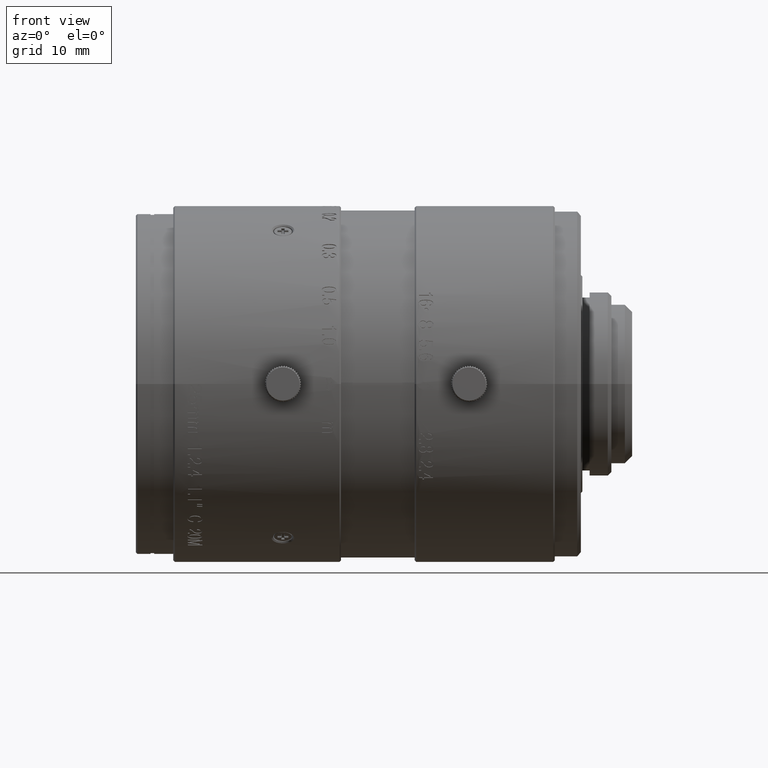
[diagram: clean part render]
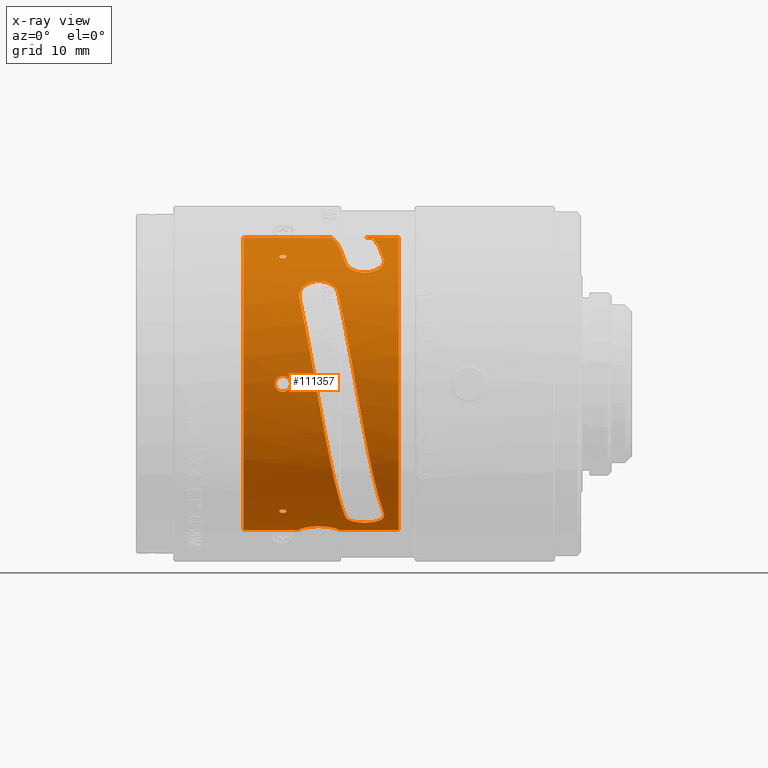
[diagram: x-ray — body ghosted, one internal face saturated and labeled with its STEP entity id]
A machine part, front view, then the same camera in x-ray: the body is ghosted and one INTERNAL B-rep face — a face not visible from any outside direction — is saturated and labeled: STEP entity #111357.
In plain terms, the highlighted cylindrical surface (partial cylindrical patch) has radius 20.25 mm, axis along (1, 0, 0).
Its self-contained STEP definition (entity closure, byte-faithful):
#106 = CARTESIAN_POINT ( 'NONE',  ( -48.52879999999999683, -10.12481306513000057, 17.53712235220000082 ) ) ;
#200 = CARTESIAN_POINT ( 'NONE',  ( -40.38462220869999442, 0.08342085603240000091, 0.6403610908152999048 ) ) ;
#450 = CARTESIAN_POINT ( 'NONE',  ( -34.11227357040999664, -9.513638902979998591, -17.87617886510999909 ) ) ;
#495 = EDGE_CURVE ( 'NONE', #81730, #96506, #132108, .T. ) ;
#799 = CARTESIAN_POINT ( 'NONE',  ( -47.52880000000001814, -10.09613309269767178, 17.55368033439397735 ) ) ;
#1018 = CARTESIAN_POINT ( 'NONE',  ( -47.54101926678306711, -10.01357050040523866, -17.60097728622428548 ) ) ;
#1874 = VERTEX_POINT ( 'NONE', #42563 ) ;
#2384 = B_SPLINE_CURVE_WITH_KNOTS ( 'NONE', 3,
 ( #130085, #24219, #34055, #109741, #66263, #76824, #13726, #56427, #74726, #117482, #64190, #14566, #25087, #26457, #68506, #15939, #112663, #102137, #49521, #4051, #111283, #79736, #36975, #89552, #78342, #48839, #58658, #101448, #59344, #100736, #81125 ),
 .UNSPECIFIED., .F., .F.,
 ( 4, 2, 1, 2, 2, 2, 2, 2, 2, 2, 2, 2, 2, 2, 2, 4 ),
 ( 0.000000000000000000, 0.06250000000000215106, 0.09375000000000313638, 0.1093750000000031086, 0.1250000000000030809, 0.2500000000000027756, 0.3750000000000024425, 0.5000000000000021094, 0.6250000000000018874, 0.7500000000000015543, 0.8125000000000004441, 0.8437500000000004441, 0.8750000000000003331, 0.9062500000000003331, 0.9375000000000003331, 1.000000000000000000 ),
 .UNSPECIFIED. ) ;
#2459 = B_SPLINE_CURVE_WITH_KNOTS ( 'NONE', 3,
 ( #7207, #84284, #92012, #18373, #72342, #49912, #29589, #115120, #92694, #135488, #39428, #28888, #70283, #136877, #61812, #105293, #134800, #71640, #114420, #8591, #40105, #61111, #126337, #17026, #103902, #82880, #73043, #7894, #51286, #62494, #94059, #113051, #9286, #93379, #59739, #52002, #94766, #102509, #137580, #6513, #38738, #81511, #124255, #70966, #110649, #21168, #25135, #88240, #131687, #119770, #117194, #121146, #31684, #9985, #65788, #131013, #67860, #67165, #77038, #98726, #14615, #87544, #74434, #57337, #46148, #44757, #130309, #99428, #77716, #108573 ),
 .UNSPECIFIED., .F., .F.,
 ( 4, 2, 2, 1, 1, 1, 2, 2, 2, 2, 2, 1, 2, 2, 2, 2, 2, 1, 1, 2, 2, 2, 2, 1, 1, 2, 2, 2, 2, 2, 2, 2, 2, 2, 2, 1, 1, 2, 2, 4 ),
 ( 0.000000000000000000, 0.06250000000018672563, 0.09375000000028012315, 0.1093750000003268358, 0.1171875000003528428, 0.1210937500003658740, 0.1230468750003697737, 0.1250000000003736733, 0.1875000000003680389, 0.2187500000003652356, 0.2343750000003638478, 0.2421875000003647915, 0.2460937500003652356, 0.2500000000003656520, 0.3750000000003474443, 0.4375000000003383405, 0.4687500000003343437, 0.4843750000003326783, 0.4921875000003318457, 0.4960937500003313461, 0.5000000000003308465, 0.5625000000003227418, 0.5937500000003187450, 0.6093750000003166356, 0.6171875000003156364, 0.6210937500003161915, 0.6250000000003167466, 0.6875000000002928768, 0.7187500000002825518, 0.7343750000002773337, 0.7421875000002746692, 0.7500000000002720046, 0.8125000000002544631, 0.8437500000002482459, 0.8593750000002486900, 0.8671875000002530198, 0.8710937500002551293, 0.8730468750002513545, 0.8750000000002474687, 1.000000000000000000 ),
 .UNSPECIFIED. ) ;
#2532 = CARTESIAN_POINT ( 'NONE',  ( -38.31895458895667161, -20.23575897031674842, 1.656850339809547989 ) ) ;
#3223 = CARTESIAN_POINT ( 'NONE',  ( -40.42229509822999489, -15.95265611257999971, 12.47312797768999815 ) ) ;
#3526 = CARTESIAN_POINT ( 'NONE',  ( -49.12859646563034488, -20.24999408300200798, -0.02222308514574727889 ) ) ;
#3598 = CARTESIAN_POINT ( 'NONE',  ( -35.20569407454561883, -12.83954831479481129, 15.65941260288275494 ) ) ;
#4051 = CARTESIAN_POINT ( 'NONE',  ( -45.29551758861071420, -3.940907025611291470, -19.86333095135055871 ) ) ;
#4204 = CARTESIAN_POINT ( 'NONE',  ( -48.44615943721323248, -20.22560750562838550, -0.9911048813598332119 ) ) ;
#4277 = CARTESIAN_POINT ( 'NONE',  ( -38.22463719554377093, -12.90552227411900077, 15.60516680794106925 ) ) ;
#4293 = CARTESIAN_POINT ( 'NONE',  ( -42.03693073117205614, -14.61046084855324700, 14.02135160089777521 ) ) ;
#4903 = CARTESIAN_POINT ( 'NONE',  ( -48.16394627989118504, -20.22197463871665946, -1.065627678849559556 ) ) ;
#4980 = CARTESIAN_POINT ( 'NONE',  ( -39.44531220995999377, -11.42874829716000029, 16.71674284359999874 ) ) ;
#4999 = CARTESIAN_POINT ( 'NONE',  ( -45.67748844455144308, -15.73827126693542411, 12.74269580876912933 ) ) ;
#5596 = CARTESIAN_POINT ( 'NONE',  ( -49.02008021686829409, -20.24424511522042991, -0.4839587143050562701 ) ) ;
#5671 = CARTESIAN_POINT ( 'NONE',  ( -34.19011864835589165, -11.71149211939590451, 16.52000094575416256 ) ) ;
#5684 = CARTESIAN_POINT ( 'NONE',  ( -45.75527937475999352, -16.45709711632999728, 11.79959671619000083 ) ) ;
#5720 = VERTEX_POINT ( 'NONE', #116036 ) ;
#5864 = CARTESIAN_POINT ( 'NONE',  ( -36.56128229610000346, 2.408561789100999828, 20.10626992398999846 ) ) ;
#6037 = CARTESIAN_POINT ( 'NONE',  ( -33.57296076539333995, 2.408558432899318369, 20.10625142276238364 ) ) ;
#6287 = CARTESIAN_POINT ( 'NONE',  ( -49.12878510527670528, -20.25000178914660509, -0.006580600342135608724 ) ) ;
#6369 = CARTESIAN_POINT ( 'NONE',  ( -45.74069896378925648, -15.89764976932189811, 12.54329873863159150 ) ) ;
#6464 = CARTESIAN_POINT ( 'NONE',  ( -41.28560647210291279, -16.59089884267124759, -11.70355315028630017 ) ) ;
#6513 = CARTESIAN_POINT ( 'NONE',  ( -46.97997489469916843, -20.24742282697279094, -0.3232098842096847169 ) ) ;
#6630 = CARTESIAN_POINT ( 'NONE',  ( -37.59114454472811673, -2.408556998398193372, -20.10625159460218470 ) ) ;
#6978 = CARTESIAN_POINT ( 'NONE',  ( -48.66190521122507562, -20.23100229275926054, 0.8793843561459475655 ) ) ;
#7207 = CARTESIAN_POINT ( 'NONE',  ( -48.02880000001000127, -20.22161338612999870, 1.071845166923000026 ) ) ;
#7671 = CARTESIAN_POINT ( 'NONE',  ( -49.07762510563425451, -20.24741578580853840, 0.3236506760552796957 ) ) ;
#7825 = CARTESIAN_POINT ( 'NONE',  ( -48.16111120843411442, -10.55466297422008104, 17.28182830352623611 ) ) ;
#7894 = CARTESIAN_POINT ( 'NONE',  ( -46.93711135528146627, -20.24946178372794492, 0.1341161370444330370 ) ) ;
#8591 = CARTESIAN_POINT ( 'NONE',  ( -47.28193485154618259, -20.23479296349415080, 0.7871666455748166369 ) ) ;
#8777 = CARTESIAN_POINT ( 'NONE',  ( -47.52880000000003236, -10.06795309900939195, -17.56995131163873225 ) ) ;
#9137 = FACE_BOUND ( 'NONE', #81026, .T. ) ;
#9254 = CARTESIAN_POINT ( 'NONE',  ( -48.52879999999999683, -10.06766381085593487, 17.57011667731403293 ) ) ;
#9286 = CARTESIAN_POINT ( 'NONE',  ( -46.92887284243077062, -20.24999981602157462, 0.01325375563452383526 ) ) ;
#9544 = EDGE_CURVE ( 'NONE', #51928, #29408, #90101, .T. ) ;
#9748 = CARTESIAN_POINT ( 'NONE',  ( -48.50333137647957926, -20.22681306871838558, 0.9669471533844022915 ) ) ;
#9940 = CARTESIAN_POINT ( 'NONE',  ( -49.66729927620999518, 2.408556164951773493, 20.10625169444313443 ) ) ;
#9985 = CARTESIAN_POINT ( 'NONE',  ( -47.23086791926326811, -20.23658485823773034, -0.7374022066507990303 ) ) ;
#10261 = AXIS2_PLACEMENT_3D ( 'NONE', #100328, #133308, #134694 ) ;
#10628 = CARTESIAN_POINT ( 'NONE',  ( -47.52880000000000393, -10.12481306340999865, 17.53712235320000090 ) ) ;
#10677 = CARTESIAN_POINT ( 'NONE',  ( -39.37332581443165225, -8.455472336295287050, -18.40091126147136791 ) ) ;
#11275 = CARTESIAN_POINT ( 'NONE',  ( -45.75527937475999352, -16.45709711632999728, 11.79959671619000083 ) ) ;
#11308 = CARTESIAN_POINT ( 'NONE',  ( -47.59137329945364314, -9.907235814227075110, 17.66105981549277004 ) ) ;
#11537 = CARTESIAN_POINT ( 'NONE',  ( -47.65037198996841283, -9.839588589545856578, -17.69874440464825582 ) ) ;
#13245 = AXIS2_PLACEMENT_3D ( 'NONE', #59378, #38385, #19414 ) ;
#13280 = EDGE_CURVE ( 'NONE', #17360, #81730, #107653, .T. ) ;
#13726 = CARTESIAN_POINT ( 'NONE',  ( -40.70724417556665031, -3.655179210653486166, -19.91741673798383161 ) ) ;
#14039 = CARTESIAN_POINT ( 'NONE',  ( -48.41898148833808335, -20.22511879534888379, -1.001667809417593702 ) ) ;
#14322 = B_SPLINE_CURVE_WITH_KNOTS ( 'NONE', 3,
 ( #55616, #56313, #101865, #124286, #26182, #5864 ),
 .UNSPECIFIED., .F., .F.,
 ( 4, 2, 4 ),
 ( 0.000000000000000000, 0.5000000000000000000, 1.000000000000000000 ),
 .UNSPECIFIED. ) ;
#14514 = VERTEX_POINT ( 'NONE', #85407 ) ;
#14566 = CARTESIAN_POINT ( 'NONE',  ( -41.97684719103951068, -4.832864094903642993, -19.66508870744593551 ) ) ;
#14615 = CARTESIAN_POINT ( 'NONE',  ( -47.56595091913910522, -20.22656670701172743, -0.9718309356850606262 ) ) ;
#14787 = CARTESIAN_POINT ( 'NONE',  ( -34.16569708233484448, -11.64073041063370972, 16.56994285567734693 ) ) ;
#15468 = CARTESIAN_POINT ( 'NONE',  ( -37.06146942547332657, -13.22659217534764053, 15.33383831724744972 ) ) ;
#15483 = CARTESIAN_POINT ( 'NONE',  ( -41.20553603639986306, -14.96569853265790684, 13.64314154152526015 ) ) ;
#15939 = CARTESIAN_POINT ( 'NONE',  ( -43.96620745031694355, -4.922148953711818820, -19.64324474144696353 ) ) ;
#16035 = EDGE_CURVE ( 'NONE', #35996, #14514, #95618, .T. ) ;
#16082 = CIRCLE ( 'NONE', #98813, 20.25000000000000000 ) ;
#16175 = CARTESIAN_POINT ( 'NONE',  ( -34.80462617654630719, -12.56765122171981730, 15.87864502837565261 ) ) ;
#16193 = CARTESIAN_POINT ( 'NONE',  ( -45.78623785648446898, -16.13441371171765226, 12.23703299580258452 ) ) ;
#16239 = CARTESIAN_POINT ( 'NONE',  ( -41.17796928907333864, -2.461361287171767831, 20.24576912174977394 ) ) ;
#16274 = CARTESIAN_POINT ( 'NONE',  ( -47.52880000000001814, -10.18206377639483229, 17.50406945232782974 ) ) ;
#16792 = CARTESIAN_POINT ( 'NONE',  ( -49.12797401190474034, -20.24995566506722611, -0.04460899824779370609 ) ) ;
#16862 = CARTESIAN_POINT ( 'NONE',  ( -34.10408200689883529, -11.39728317899552223, 16.73849722605891444 ) ) ;
#16878 = CARTESIAN_POINT ( 'NONE',  ( -42.28689372964253579, -14.54737747475750353, 14.08677206357931411 ) ) ;
#17026 = CARTESIAN_POINT ( 'NONE',  ( -47.11897856533737894, -20.24071224605111396, 0.6284067250533139637 ) ) ;
#17360 = VERTEX_POINT ( 'NONE', #34140 ) ;
#17468 = CARTESIAN_POINT ( 'NONE',  ( -48.94720715300677938, -20.24133564406927022, 0.5908138467872915411 ) ) ;
#17641 = CARTESIAN_POINT ( 'NONE',  ( -43.65190389115667102, -20.28712087440346679, 0.8147437491022800904 ) ) ;
#17709 = VERTEX_POINT ( 'NONE', #22053 ) ;
#18150 = CARTESIAN_POINT ( 'NONE',  ( -49.10172425199392876, -20.24859024254937268, 0.2388753425395543362 ) ) ;
#18373 = CARTESIAN_POINT ( 'NONE',  ( -47.78739459818954316, -20.22296560755661332, 1.046308504388016036 ) ) ;
#18600 = EDGE_LOOP ( 'NONE', ( #50272, #113257 ) ) ;
#18846 = CARTESIAN_POINT ( 'NONE',  ( -48.47542071615910686, -20.22619219808594337, 0.9793919620728367414 ) ) ;
#19235 = CARTESIAN_POINT ( 'NONE',  ( -47.62735667124938033, -10.38811481450797025, -17.38251424646502841 ) ) ;
#19269 = CARTESIAN_POINT ( 'NONE',  ( -48.43023024045670155, -9.860041590373393561, -17.68740542236672297 ) ) ;
#19414 = DIRECTION ( 'NONE',  ( 6.167905692361979378E-14, 0.1189410589988043748, 0.9929013165890370196 ) ) ;
#19739 = CARTESIAN_POINT ( 'NONE',  ( -47.53187100814395194, -10.06816229287396602, 17.56973514510815804 ) ) ;
#19787 = CARTESIAN_POINT ( 'NONE',  ( -36.70526527444079790, -6.652845428979746067, -19.12603975744701401 ) ) ;
#19917 = CARTESIAN_POINT ( 'NONE',  ( -48.16144543591636307, -10.55523403034867336, -17.28147952509463536 ) ) ;
#19950 = CARTESIAN_POINT ( 'NONE',  ( -48.52879999999999683, -10.12519365148000006, -17.53690262046999848 ) ) ;
#20230 = CARTESIAN_POINT ( 'NONE',  ( -48.88654454837198671, -20.23885032287070729, 0.6712765846804478187 ) ) ;
#20434 = CARTESIAN_POINT ( 'NONE',  ( -47.89682477399912131, -9.688738036769171558, 17.78175624778002017 ) ) ;
#21168 = CARTESIAN_POINT ( 'NONE',  ( -47.02875397816882241, -20.24508653397005276, -0.4482907218399971860 ) ) ;
#21184 = CARTESIAN_POINT ( 'NONE',  ( -38.66117236121765899, -7.358216623281276902, -18.86700651078998447 ) ) ;
#21352 = CARTESIAN_POINT ( 'NONE',  ( -47.89621298622822110, -9.689011704638490485, -17.78160713210816724 ) ) ;
#22053 = CARTESIAN_POINT ( 'NONE',  ( -32.07879999996000464, -20.25000000000000000, 2.854047664868999741E-09 ) ) ;
#23549 = CARTESIAN_POINT ( 'NONE',  ( -35.16394382504665117, -14.27657450455600951, -14.43643011859547620 ) ) ;
#24219 = CARTESIAN_POINT ( 'NONE',  ( -40.44785009815762322, -2.984859677687928148, -20.02945153606958328 ) ) ;
#24575 = CARTESIAN_POINT ( 'NONE',  ( -48.52879999999999683, -10.12519365148000006, -17.53690262046999848 ) ) ;
#24817 = ORIENTED_EDGE ( 'NONE', *, *, #52888, .F. ) ;
#25087 = CARTESIAN_POINT ( 'NONE',  ( -42.62817918406578599, -5.024794159860141995, -19.61692465404717112 ) ) ;
#25135 = CARTESIAN_POINT ( 'NONE',  ( -47.05391173984476438, -20.24383713642227889, -0.5008187124546721325 ) ) ;
#25237 = CARTESIAN_POINT ( 'NONE',  ( -48.30605593941822207, -20.22341077174371193, -1.037433728076530670 ) ) ;
#25309 = CARTESIAN_POINT ( 'NONE',  ( -39.28796384407036868, -11.89527774999139531, 16.38815469463689567 ) ) ;
#25424 = CARTESIAN_POINT ( 'NONE',  ( -45.75527937475999352, -16.45709711632999728, 11.79959671619000083 ) ) ;
#25924 = CARTESIAN_POINT ( 'NONE',  ( -48.93862143429164036, -20.24072592185130048, -0.6279660787796434995 ) ) ;
#26010 = CARTESIAN_POINT ( 'NONE',  ( -43.16632316362417754, -14.44813116314962542, 14.18862943417085276 ) ) ;
#26182 = CARTESIAN_POINT ( 'NONE',  ( -36.15311976091167878, 0.1387281855916756013, 20.37815777540595974 ) ) ;
#26457 = CARTESIAN_POINT ( 'NONE',  ( -42.95978117167332755, -5.059845942317014789, -19.60768141054251856 ) ) ;
#26511 = CARTESIAN_POINT ( 'NONE',  ( -50.91550633908666867, -2.408556931694197711, -20.10625160259275290 ) ) ;
#26684 = CARTESIAN_POINT ( 'NONE',  ( -35.99758735675513321, -13.15104309646870462, 15.39856371130338175 ) ) ;
#26699 = CARTESIAN_POINT ( 'NONE',  ( -45.06299399529329719, -15.04353981826403164, 13.55614750852793193 ) ) ;
#26826 = CARTESIAN_POINT ( 'NONE',  ( -48.52879999999999683, -10.12481306513000057, 17.53712235220000082 ) ) ;
#27381 = DIRECTION ( 'NONE',  ( 1.000000000000000000, 1.488300509307520025E-22, -1.262101534394000094E-11 ) ) ;
#27387 = CARTESIAN_POINT ( 'NONE',  ( -34.38886786580330579, -12.10984867572913082, 16.23084377829268377 ) ) ;
#27404 = CARTESIAN_POINT ( 'NONE',  ( -45.77695131877773349, -16.05505867906326856, 12.34096635690462662 ) ) ;
#27449 = CARTESIAN_POINT ( 'NONE',  ( -39.87847647973833176, -9.425749929388967274, 18.08603618778529309 ) ) ;
#27990 = CARTESIAN_POINT ( 'NONE',  ( -48.49164908127600881, -20.22654554516852343, 0.9722712739429738571 ) ) ;
#28064 = CARTESIAN_POINT ( 'NONE',  ( -34.07483861297376393, -11.00531321802890083, 16.99923834844240389 ) ) ;
#28090 = VERTEX_POINT ( 'NONE', #131131 ) ;
#28663 = CARTESIAN_POINT ( 'NONE',  ( -48.85036812570821496, -20.23745398461192480, 0.7127674120378525435 ) ) ;
#28748 = CARTESIAN_POINT ( 'NONE',  ( -44.27879999999999683, -5.023537141824000403E-12, -2.339239912884999853E-13 ) ) ;
#28888 = CARTESIAN_POINT ( 'NONE',  ( -47.60793821945878790, -20.22565095506373822, 0.9901316442519837446 ) ) ;
#28906 = CARTESIAN_POINT ( 'NONE',  ( -35.20510295600389838, -7.142175288305477210, -18.94889715922858997 ) ) ;
#29051 = CARTESIAN_POINT ( 'NONE',  ( -48.52880000032753571, -10.18244441235558639, -17.50384803534976186 ) ) ;
#29358 = CARTESIAN_POINT ( 'NONE',  ( -49.02884602205520537, -20.24507676975548875, 0.4487314632300540840 ) ) ;
#29408 = VERTEX_POINT ( 'NONE', #36062 ) ;
#29520 = CARTESIAN_POINT ( 'NONE',  ( -47.54102213465055371, -10.23613492443792872, 17.47247947544880731 ) ) ;
#29589 = CARTESIAN_POINT ( 'NONE',  ( -47.67032198185206937, -20.22456083490534340, 1.013552559921416574 ) ) ;
#30151 = FACE_BOUND ( 'NONE', #135734, .T. ) ;
#30312 = CARTESIAN_POINT ( 'NONE',  ( -35.99519812520254192, -6.760413414184675673, -19.08828330611879665 ) ) ;
#30759 = CARTESIAN_POINT ( 'NONE',  ( -48.16247119253311126, -20.22161338612970383, 1.071845166926510329 ) ) ;
#30842 = DIRECTION ( 'NONE',  ( 1.000000000000000000, 0.000000000000000000, 0.000000000000000000 ) ) ;
#31132 = CARTESIAN_POINT ( 'NONE',  ( -48.47990199592624094, -10.31294081365551563, -17.42718067872750254 ) ) ;
#31684 = CARTESIAN_POINT ( 'NONE',  ( -47.21493216981900787, -20.23717888575419721, -0.7206773172229568036 ) ) ;
#31871 = CARTESIAN_POINT ( 'NONE',  ( -48.16109653482178743, -9.689213137329733883, -17.78149737206230085 ) ) ;
#32037 = ORIENTED_EDGE ( 'NONE', *, *, #16035, .F. ) ;
#32334 = CARTESIAN_POINT ( 'NONE',  ( -48.16169698408090483, -9.688698289885737225, 17.78177790459005081 ) ) ;
#33008 = CARTESIAN_POINT ( 'NONE',  ( -45.85579855242000491, 2.408555885178678135, 20.10625172795754878 ) ) ;
#33032 = EDGE_CURVE ( 'NONE', #17360, #107079, #136760, .T. ) ;
#33762 = CARTESIAN_POINT ( 'NONE',  ( -40.43545826939341481, -15.90162819921676984, 12.53824407803317342 ) ) ;
#34055 = CARTESIAN_POINT ( 'NONE',  ( -40.48775117352742825, -3.139423129740429363, -20.00574020323738722 ) ) ;
#34140 = CARTESIAN_POINT ( 'NONE',  ( -42.04429782863000042, 2.408557668607000046, 20.10626898476000335 ) ) ;
#34879 = CARTESIAN_POINT ( 'NONE',  ( -53.47880000013000057, -2.408557018963000118, -20.10625159213999780 ) ) ;
#35743 = CARTESIAN_POINT ( 'NONE',  ( -48.02880000004000749, -20.22163671574000077, -1.071404935874000097 ) ) ;
#35814 = CARTESIAN_POINT ( 'NONE',  ( -34.08558766364433978, -10.86462617747828752, 17.08946280185867295 ) ) ;
#35996 = VERTEX_POINT ( 'NONE', #34879 ) ;
#36062 = CARTESIAN_POINT ( 'NONE',  ( -34.11227357040999664, -9.513638902979998591, -17.87617886510999909 ) ) ;
#36438 = CARTESIAN_POINT ( 'NONE',  ( -48.76133534317985152, -20.23431858313458775, -0.7993260355037565823 ) ) ;
#36975 = CARTESIAN_POINT ( 'NONE',  ( -45.54441902202901815, -3.511992906462317876, -19.94327076582522551 ) ) ;
#37133 = CARTESIAN_POINT ( 'NONE',  ( -49.09097957181123206, -20.24774061962346394, -0.2856614745801503985 ) ) ;
#37216 = CARTESIAN_POINT ( 'NONE',  ( -40.61347343629883966, -15.54357945248350426, 12.97943707555614168 ) ) ;
#37260 = CARTESIAN_POINT ( 'NONE',  ( -42.04429782863000042, 2.408557668607000046, 20.10626898476000335 ) ) ;
#37308 = CARTESIAN_POINT ( 'NONE',  ( -43.12606002025584218, -20.19155160803809324, -2.128925646727189314 ) ) ;
#37574 = ORIENTED_EDGE ( 'NONE', *, *, #114591, .F. ) ;
#37813 = CARTESIAN_POINT ( 'NONE',  ( -49.12685770588660006, -20.24988094300882935, -0.06452053441424435154 ) ) ;
#37830 = B_SPLINE_CURVE_WITH_KNOTS ( 'NONE', 3,
 ( #82357, #127874, #52842, #39585, #95607, #94915, #19235, #115960, #125094, #19917, #52160, #137724, #41662, #127180, #31132, #116659, #29051, #71802 ),
 .UNSPECIFIED., .F., .F.,
 ( 4, 2, 2, 2, 2, 2, 2, 2, 4 ),
 ( 0.000000000000000000, 0.06249999999999802935, 0.1249999999999960587, 0.2499999999999977240, 0.4999999999999966693, 0.7499999999999955591, 0.8124999999999946709, 0.8749999999999937828, 1.000000000000000000 ),
 .UNSPECIFIED. ) ;
#37884 = CARTESIAN_POINT ( 'NONE',  ( -39.41496072051072730, -11.56444941394707371, 16.62325595678208146 ) ) ;
#37901 = CARTESIAN_POINT ( 'NONE',  ( -40.68874915420277460, -15.44259240552468881, 13.09942704055482388 ) ) ;
#38006 = B_SPLINE_CURVE_WITH_KNOTS ( 'NONE', 3,
 ( #47979, #6630, #134923, #47273 ),
 .UNSPECIFIED., .F., .F.,
 ( 4, 4 ),
 ( 0.000000000000000000, 1.000000000000000000 ),
 .UNSPECIFIED. ) ;
#38385 = DIRECTION ( 'NONE',  ( 1.000000000000000000, -2.933862404944285127E-18, -6.219698080248550846E-14 ) ) ;
#38581 = CARTESIAN_POINT ( 'NONE',  ( -37.49382704439346981, -13.14804622214327878, 15.40103269013247989 ) ) ;
#38598 = CARTESIAN_POINT ( 'NONE',  ( -45.78381333728803781, -16.10747681409855758, 12.27247124639918496 ) ) ;
#38641 = CARTESIAN_POINT ( 'NONE',  ( -39.44531220995999377, -11.42874829716000029, 16.71674284359999874 ) ) ;
#38738 = CARTESIAN_POINT ( 'NONE',  ( -46.98840129593910575, -20.24701637957187472, -0.3484354308436797831 ) ) ;
#39189 = CARTESIAN_POINT ( 'NONE',  ( -49.05324232772717608, -20.24624315943608011, 0.3904718815066146043 ) ) ;
#39351 = CARTESIAN_POINT ( 'NONE',  ( -48.52879999999999683, -10.12481306513000057, 17.53712235220000082 ) ) ;
#39428 = CARTESIAN_POINT ( 'NONE',  ( -47.61144056284535253, -20.22558592417309598, 0.9915451988582928422 ) ) ;
#39585 = CARTESIAN_POINT ( 'NONE',  ( -47.54411030001702443, -10.23582764227956687, -17.47258752671257653 ) ) ;
#40105 = CARTESIAN_POINT ( 'NONE',  ( -47.26747434702925688, -20.23530424600772193, 0.7737388687235432494 ) ) ;
#40126 = CARTESIAN_POINT ( 'NONE',  ( -37.75741493410642846, -6.823238062174796781, -19.06601484059272522 ) ) ;
#40132 = VERTEX_POINT ( 'NONE', #59129 ) ;
#40833 = CARTESIAN_POINT ( 'NONE',  ( -39.41722617459861766, -8.607048270087087616, -18.33060459865306058 ) ) ;
#41363 = CYLINDRICAL_SURFACE ( 'NONE', #94793, 20.25000000000000711 ) ;
#41519 = CARTESIAN_POINT ( 'NONE',  ( -34.24757669368433710, -8.285334943647539419, -18.47811738604045217 ) ) ;
#41662 = CARTESIAN_POINT ( 'NONE',  ( -48.42783743615463266, -10.38630976480977886, -17.38355017269536873 ) ) ;
#41901 = ORIENTED_EDGE ( 'NONE', *, *, #58962, .T. ) ;
#42373 = CARTESIAN_POINT ( 'NONE',  ( -48.51349758399399548, -10.01421262552769420, -17.60054053814555530 ) ) ;
#42563 = CARTESIAN_POINT ( 'NONE',  ( -47.52880000000000393, -10.12519365320999931, -17.53690261947999929 ) ) ;
#42944 = DIRECTION ( 'NONE',  ( -0.9844337567772700748, 0.1742833879547945053, -0.02270416702699070213 ) ) ;
#44177 = CARTESIAN_POINT ( 'NONE',  ( -34.11230708497000563, -10.72441825131000037, 17.17711312352999897 ) ) ;
#44557 = CARTESIAN_POINT ( 'NONE',  ( -36.74144920700165784, -19.04005539509913802, -7.050346424455317340 ) ) ;
#44757 = CARTESIAN_POINT ( 'NONE',  ( -47.60432148616935422, -20.22576409239286122, -0.9882457195997971233 ) ) ;
#45328 = ORIENTED_EDGE ( 'NONE', *, *, #9544, .T. ) ;
#46148 = CARTESIAN_POINT ( 'NONE',  ( -47.60200166159571467, -20.22580898106825842, -0.9872951987508651328 ) ) ;
#46615 = CARTESIAN_POINT ( 'NONE',  ( -39.37062484359334036, -18.90857521431363253, 7.395733737629413440 ) ) ;
#46908 = CARTESIAN_POINT ( 'NONE',  ( -48.44966178060032291, -20.22567250574550002, -0.9896913253380041908 ) ) ;
#46979 = CARTESIAN_POINT ( 'NONE',  ( -37.58073453044216450, -13.12885882536177107, 15.41740589599312372 ) ) ;
#47101 = CARTESIAN_POINT ( 'NONE',  ( -44.70359163295833582, -19.19950556633348171, 6.603791846937184573 ) ) ;
#47273 = CARTESIAN_POINT ( 'NONE',  ( -32.07879999996000464, -2.408557018963000118, -20.10625159213999780 ) ) ;
#47616 = CARTESIAN_POINT ( 'NONE',  ( -48.66004702090440048, -20.23105178573559826, -0.8785353280881817994 ) ) ;
#47685 = CARTESIAN_POINT ( 'NONE',  ( -39.34800599740177773, -11.76193743774385148, 16.48411583177538731 ) ) ;
#47803 = B_SPLINE_CURVE_WITH_KNOTS ( 'NONE', 3,
 ( #93562, #6037, #101343, #92880 ),
 .UNSPECIFIED., .F., .F.,
 ( 4, 4 ),
 ( 0.000000000000000000, 1.000000000000000000 ),
 .UNSPECIFIED. ) ;
#47979 = CARTESIAN_POINT ( 'NONE',  ( -40.34731681711999585, -2.408555159526999834, -20.10625819355000132 ) ) ;
#48209 = CARTESIAN_POINT ( 'NONE',  ( -53.47880000013000057, -2.408557018963000118, -20.10625159213999780 ) ) ;
#48313 = ORIENTED_EDGE ( 'NONE', *, *, #98410, .T. ) ;
#48314 = CARTESIAN_POINT ( 'NONE',  ( -49.12374216120232262, -20.24967577527539575, -0.1052701421709647533 ) ) ;
#48473 = CARTESIAN_POINT ( 'NONE',  ( -48.52879999983628068, -10.15345586906936326, 17.52058582872676951 ) ) ;
#48839 = CARTESIAN_POINT ( 'NONE',  ( -45.66543363810045975, -3.203863168845532350, -19.99510174933688234 ) ) ;
#48987 = CARTESIAN_POINT ( 'NONE',  ( -48.62593796455838913, -20.23005274703255907, -0.9004503062251441037 ) ) ;
#49065 = B_SPLINE_CURVE_WITH_KNOTS ( 'NONE', 3,
 ( #39351, #48473, #115048, #134025, #49145, #136105, #81442, #61739, #7825, #123494, #104528, #91245, #90563, #50530, #91938, #29520, #16274, #133343 ),
 .UNSPECIFIED., .F., .F.,
 ( 4, 2, 2, 2, 2, 2, 2, 2, 4 ),
 ( 0.000000000000000000, 0.06249999999999936162, 0.1249999999999987232, 0.2500000000000000000, 0.5000000000000022204, 0.7500000000000043299, 0.8125000000000025535, 0.8750000000000007772, 1.000000000000000000 ),
 .UNSPECIFIED. ) ;
#49077 = CARTESIAN_POINT ( 'NONE',  ( -42.37380143444367064, -14.52981285797428157, 14.10487382627544939 ) ) ;
#49145 = CARTESIAN_POINT ( 'NONE',  ( -48.50490991953574849, -10.26046905924815000, 17.45812817402927664 ) ) ;
#49521 = CARTESIAN_POINT ( 'NONE',  ( -45.19318427517096382, -4.072012561680880438, -19.83675807031611171 ) ) ;
#49686 = CARTESIAN_POINT ( 'NONE',  ( -48.56908112790171117, -20.22843832538125852, 0.9342644825163186617 ) ) ;
#49864 = CARTESIAN_POINT ( 'NONE',  ( -39.70807485940042625, -10.09038490266293842, -17.61860418039340814 ) ) ;
#49912 = CARTESIAN_POINT ( 'NONE',  ( -47.69744860721164770, -20.22414882084849808, 1.022168445191746100 ) ) ;
#50272 = ORIENTED_EDGE ( 'NONE', *, *, #58216, .T. ) ;
#50361 = CARTESIAN_POINT ( 'NONE',  ( -48.87269410051455054, -20.23830715472537278, 0.6878028041048643848 ) ) ;
#50530 = CARTESIAN_POINT ( 'NONE',  ( -47.59374274475059963, -10.33896366718379767, 17.41175114056355966 ) ) ;
#50633 = ORIENTED_EDGE ( 'NONE', *, *, #111247, .T. ) ;
#50928 = VERTEX_POINT ( 'NONE', #26826 ) ;
#51185 = B_SPLINE_CURVE_WITH_KNOTS ( 'NONE', 3,
 ( #63171, #799, #19739, #51249, #94729, #11308, #54009, #62459, #20434, #32334, #127001, #126306, #82844, #84931, #105958, #106644, #9254, #106 ),
 .UNSPECIFIED., .F., .F.,
 ( 4, 2, 2, 2, 2, 2, 2, 2, 4 ),
 ( 0.000000000000000000, 0.06249999999999630851, 0.1249999999999926170, 0.2499999999999931166, 0.5000000000000032196, 0.7500000000000133227, 0.8125000000000106581, 0.8750000000000078826, 1.000000000000000000 ),
 .UNSPECIFIED. ) ;
#51249 = CARTESIAN_POINT ( 'NONE',  ( -47.54415504071979370, -10.01365203104251478, 17.60085958202312995 ) ) ;
#51286 = CARTESIAN_POINT ( 'NONE',  ( -46.93385783882489903, -20.24967347872243550, 0.1057109833267621812 ) ) ;
#51302 = CARTESIAN_POINT ( 'NONE',  ( -39.44515292395000472, -8.762783496064001199, -18.25582883056000227 ) ) ;
#51928 = VERTEX_POINT ( 'NONE', #77907 ) ;
#52002 = CARTESIAN_POINT ( 'NONE',  ( -46.92879315279873964, -20.24996887432585879, -0.06697990903892492298 ) ) ;
#52160 = CARTESIAN_POINT ( 'NONE',  ( -48.29134592734499876, -10.50931090555934411, -17.30970235622723408 ) ) ;
#52619 = ORIENTED_EDGE ( 'NONE', *, *, #77115, .T. ) ;
#52775 = B_SPLINE_CURVE_WITH_KNOTS ( 'NONE', 3,
 ( #19950, #138437, #64745, #42373, #53543, #127907, #19269, #107536, #31871, #21352, #72536, #11537, #96326, #54228, #97038, #1018, #8777, #137076 ),
 .UNSPECIFIED., .F., .F.,
 ( 4, 2, 2, 2, 2, 2, 2, 2, 4 ),
 ( 0.000000000000000000, 0.06249999999999814038, 0.1249999999999962808, 0.2499999999999928946, 0.4999999999999953371, 0.7499999999999976685, 0.8124999999999982236, 0.8749999999999987788, 1.000000000000000000 ),
 .UNSPECIFIED. ) ;
#52842 = CARTESIAN_POINT ( 'NONE',  ( -47.53186206000340519, -10.18169002211024399, -17.50419008965415557 ) ) ;
#52878 = ORIENTED_EDGE ( 'NONE', *, *, #93959, .F. ) ;
#52888 = EDGE_CURVE ( 'NONE', #107079, #28090, #80381, .T. ) ;
#53543 = CARTESIAN_POINT ( 'NONE',  ( -48.50492102299443076, -9.988993516342235424, -17.61486512410603567 ) ) ;
#54009 = CARTESIAN_POINT ( 'NONE',  ( -47.62753265656919410, -9.859459559265573603, 17.68772981730564808 ) ) ;
#54228 = CARTESIAN_POINT ( 'NONE',  ( -47.59373649326424527, -9.909570718093586805, -17.65966182432208242 ) ) ;
#54786 = ORIENTED_EDGE ( 'NONE', *, *, #72777, .F. ) ;
#55053 = CARTESIAN_POINT ( 'NONE',  ( -35.42686138870583079, -15.29117183535783653, -13.35706397584432459 ) ) ;
#55436 = CARTESIAN_POINT ( 'NONE',  ( -40.49509396142519790, -15.74881901449446886, 12.72964371213696388 ) ) ;
#55616 = CARTESIAN_POINT ( 'NONE',  ( -34.11230708497000563, -10.72441825131000037, 17.17711312352999897 ) ) ;
#55981 = VERTEX_POINT ( 'NONE', #10628 ) ;
#56313 = CARTESIAN_POINT ( 'NONE',  ( -34.52046962015832321, -8.785222717603089038, 18.38772475405853513 ) ) ;
#56427 = CARTESIAN_POINT ( 'NONE',  ( -40.72641659521088542, -3.689565559290680419, -19.91107671858850026 ) ) ;
#56814 = ORIENTED_EDGE ( 'NONE', *, *, #58257, .T. ) ;
#57337 = CARTESIAN_POINT ( 'NONE',  ( -47.59847993261149668, -20.22587781159996823, -0.9858458020742371097 ) ) ;
#57519 = CARTESIAN_POINT ( 'NONE',  ( -40.95983070515780611, -15.14562696028662003, 13.44489080639853995 ) ) ;
#57997 = CARTESIAN_POINT ( 'NONE',  ( -48.35221634304132010, -2.408557106229353817, -20.10625158168493343 ) ) ;
#58072 = EDGE_CURVE ( 'NONE', #40132, #60740, #47803, .T. ) ;
#58175 = CARTESIAN_POINT ( 'NONE',  ( -37.83069661710750609, -13.05954064719992758, 15.47618380199846122 ) ) ;
#58192 = CARTESIAN_POINT ( 'NONE',  ( -44.20862149724614198, -14.61552071439132128, 14.01727046833375745 ) ) ;
#58216 = EDGE_CURVE ( 'NONE', #113522, #1874, #52775, .T. ) ;
#58257 = EDGE_CURVE ( 'NONE', #96506, #60740, #14322, .T. ) ;
#58658 = CARTESIAN_POINT ( 'NONE',  ( -45.71060089384495484, -3.046607657095742105, -20.01966570536940537 ) ) ;
#58889 = CARTESIAN_POINT ( 'NONE',  ( -39.25413481246393133, -11.96014451074752927, 16.34085653634366153 ) ) ;
#58962 = EDGE_CURVE ( 'NONE', #78609, #14514, #2384, .T. ) ;
#59129 = CARTESIAN_POINT ( 'NONE',  ( -32.07880000003999754, 2.408557871006999918, 20.10625149007000090 ) ) ;
#59344 = CARTESIAN_POINT ( 'NONE',  ( -45.77454225518552988, -2.726929108214516617, -20.06619550782567174 ) ) ;
#59378 = CARTESIAN_POINT ( 'NONE',  ( -53.47879999999999967, 0.000000000000000000, 2.267519505494000473E-12 ) ) ;
#59577 = CARTESIAN_POINT ( 'NONE',  ( -34.68793641432936425, -12.46391268693751009, 15.96040708740351022 ) ) ;
#59739 = CARTESIAN_POINT ( 'NONE',  ( -46.92880063118135325, -20.25000192635338436, 0.005090440536845216614 ) ) ;
#60190 = CARTESIAN_POINT ( 'NONE',  ( -48.82673208087418004, -20.23656879997006897, 0.7378427631541779608 ) ) ;
#60366 = CARTESIAN_POINT ( 'NONE',  ( -39.44515292395000472, -8.762783496064001199, -18.25582883056000227 ) ) ;
#60740 = VERTEX_POINT ( 'NONE', #137239 ) ;
#60883 = CARTESIAN_POINT ( 'NONE',  ( -49.12219192913746468, -20.24961089410441417, 0.1362610624858391628 ) ) ;
#61111 = CARTESIAN_POINT ( 'NONE',  ( -47.25781186586219462, -20.23564943346062250, 0.7645986128762105594 ) ) ;
#61271 = EDGE_LOOP ( 'NONE', ( #52619, #120511, #48313, #41901, #32037, #54786, #24817, #77616, #66884, #99100, #56814, #76892, #89580 ) ) ;
#61477 = ORIENTED_EDGE ( 'NONE', *, *, #132912, .T. ) ;
#61570 = CARTESIAN_POINT ( 'NONE',  ( -49.06919870435297071, -20.24700878923712821, 0.3488762140190055372 ) ) ;
#61710 = CARTESIAN_POINT ( 'NONE',  ( -53.47879999999999967, 2.408556444724999857, 20.10625166092999905 ) ) ;
#61739 = CARTESIAN_POINT ( 'NONE',  ( -48.29095517363760592, -10.50921348327040938, 17.30976183000293744 ) ) ;
#61812 = CARTESIAN_POINT ( 'NONE',  ( -47.43166203569452932, -20.23003313915081591, 0.9008907206374621168 ) ) ;
#62459 = CARTESIAN_POINT ( 'NONE',  ( -47.76694334588162860, -9.735587208486977673, 17.75640045923883648 ) ) ;
#62494 = CARTESIAN_POINT ( 'NONE',  ( -46.93074229417335630, -20.24987953358325043, 0.06496138022565847714 ) ) ;
#62513 = CARTESIAN_POINT ( 'NONE',  ( -35.06430345829875250, -7.242262383282776383, -18.91101521664413099 ) ) ;
#63171 = CARTESIAN_POINT ( 'NONE',  ( -47.52880000000000393, -10.12481306340999865, 17.53712235320000090 ) ) ;
#63225 = CARTESIAN_POINT ( 'NONE',  ( -39.13280173449871313, -7.950690712818021311, -18.62404058435686593 ) ) ;
#63907 = CARTESIAN_POINT ( 'NONE',  ( -34.11227357040999664, -9.513638902979998591, -17.87617886510999909 ) ) ;
#64190 = CARTESIAN_POINT ( 'NONE',  ( -41.67781923425634716, -4.681174075692407399, -19.70264555645118776 ) ) ;
#64745 = CARTESIAN_POINT ( 'NONE',  ( -48.52573951660232865, -10.06863112600925625, -17.56946638326107646 ) ) ;
#65788 = CARTESIAN_POINT ( 'NONE',  ( -47.23823783360916906, -20.23631294692650329, -0.7449256631669913808 ) ) ;
#66263 = CARTESIAN_POINT ( 'NONE',  ( -40.61520553700036373, -3.475287566329939626, -19.94979658907553244 ) ) ;
#66884 = ORIENTED_EDGE ( 'NONE', *, *, #13280, .T. ) ;
#66978 = EDGE_CURVE ( 'NONE', #50928, #55981, #49065, .T. ) ;
#67165 = CARTESIAN_POINT ( 'NONE',  ( -47.48851887276251205, -20.22845865979740410, -0.9338241032313743251 ) ) ;
#67860 = CARTESIAN_POINT ( 'NONE',  ( -47.39569478940897795, -20.23102143241778350, -0.8789439211149772113 ) ) ;
#68036 = CARTESIAN_POINT ( 'NONE',  ( -34.47814160735886446, -12.23304194309472592, 16.13804197174257737 ) ) ;
#68049 = CARTESIAN_POINT ( 'NONE',  ( -45.76352503112077841, -15.97639523276345130, 12.44307632795345242 ) ) ;
#68506 = CARTESIAN_POINT ( 'NONE',  ( -43.64061502601412457, -5.008181542845362877, -19.62094108067242715 ) ) ;
#68744 = CARTESIAN_POINT ( 'NONE',  ( -44.66192976195804931, -14.80738606654330169, 13.81349058566488708 ) ) ;
#69345 = CARTESIAN_POINT ( 'NONE',  ( -48.36015139277272112, -20.22417106898051031, -1.021728158992709634 ) ) ;
#69417 = CARTESIAN_POINT ( 'NONE',  ( -34.11230708497000563, -10.72441825131000037, 17.17711312352999897 ) ) ;
#69434 = CARTESIAN_POINT ( 'NONE',  ( -43.87004100928564299, -14.52716887554126046, 14.10769519763242030 ) ) ;
#70120 = CARTESIAN_POINT ( 'NONE',  ( -34.27897744945507696, -11.91400099954343261, 16.37454232517849562 ) ) ;
#70235 = CARTESIAN_POINT ( 'NONE',  ( -43.91482582660707834, -20.17371891929435179, 2.291756032971417500 ) ) ;
#70283 = CARTESIAN_POINT ( 'NONE',  ( -47.57406782476132179, -20.22628308440641121, 0.9763774490201234668 ) ) ;
#70917 = CARTESIAN_POINT ( 'NONE',  ( -40.75976260120210526, -14.72309776953721538, -13.98075365700853467 ) ) ;
#70966 = CARTESIAN_POINT ( 'NONE',  ( -47.00772059929706614, -20.24609086500493760, -0.3983049853403946017 ) ) ;
#71154 = VERTEX_POINT ( 'NONE', #131184 ) ;
#71640 = CARTESIAN_POINT ( 'NONE',  ( -47.32467389765319865, -20.23334359707225616, 0.8239172331098625346 ) ) ;
#71802 = CARTESIAN_POINT ( 'NONE',  ( -48.52879999999999683, -10.12519365148000006, -17.53690262046999848 ) ) ;
#72114 = CARTESIAN_POINT ( 'NONE',  ( -48.73496633894298213, -20.23322300248835148, 0.8283389607790346831 ) ) ;
#72342 = CARTESIAN_POINT ( 'NONE',  ( -47.75154406053449208, -20.22338818169738417, 1.037873997717218444 ) ) ;
#72536 = CARTESIAN_POINT ( 'NONE',  ( -47.76630608649291787, -9.736374348352111241, -17.75596880906719122 ) ) ;
#72777 = EDGE_CURVE ( 'NONE', #28090, #35996, #97745, .T. ) ;
#73043 = CARTESIAN_POINT ( 'NONE',  ( -46.95128395361503237, -20.24860372804126030, 0.2226290509231896864 ) ) ;
#73058 = CARTESIAN_POINT ( 'NONE',  ( -35.66312249060720774, -6.877308466151302646, -19.04732563539485923 ) ) ;
#73215 = CARTESIAN_POINT ( 'NONE',  ( -40.42229509822999489, -15.95265611257999971, 12.47312797768999815 ) ) ;
#73488 = CARTESIAN_POINT ( 'NONE',  ( -48.45559833852227172, -20.22578748255562076, 0.9877355206424349721 ) ) ;
#73577 = DIRECTION ( 'NONE',  ( 0.000000000000000000, 0.1189411294330025431, 0.9929013081516218087 ) ) ;
#73597 = CARTESIAN_POINT ( 'NONE',  ( -39.44531220995999377, -11.42874829716000029, 16.71674284359999874 ) ) ;
#73742 = CARTESIAN_POINT ( 'NONE',  ( -39.17373688796438103, -8.019460848417427457, -18.59453707907183784 ) ) ;
#74434 = CARTESIAN_POINT ( 'NONE',  ( -47.58997002519034680, -20.22604889876882339, -0.9822953065631483405 ) ) ;
#74454 = CARTESIAN_POINT ( 'NONE',  ( -39.28351485795778331, -8.234697207928187268, -18.50023712859939451 ) ) ;
#74726 = CARTESIAN_POINT ( 'NONE',  ( -40.91911316675312094, -4.017012797882515862, -19.84978073448824887 ) ) ;
#75072 = CARTESIAN_POINT ( 'NONE',  ( -53.47879999999999967, 2.408556444724999857, 20.10625166092999905 ) ) ;
#75097 = EDGE_CURVE ( 'NONE', #1874, #113522, #37830, .T. ) ;
#76394 = CARTESIAN_POINT ( 'NONE',  ( -40.42229509822999489, -15.95265611257999971, 12.47312797768999815 ) ) ;
#76541 = CARTESIAN_POINT ( 'NONE',  ( -40.45265067626514366, -15.85067468004713831, 12.60258868552664246 ) ) ;
#76824 = CARTESIAN_POINT ( 'NONE',  ( -40.66935223602896343, -3.583561849922341391, -19.93042671505786956 ) ) ;
#76892 = ORIENTED_EDGE ( 'NONE', *, *, #58072, .F. ) ;
#77038 = CARTESIAN_POINT ( 'NONE',  ( -47.51678188848142526, -20.22773217318610861, -0.9485105341778212740 ) ) ;
#77115 = EDGE_CURVE ( 'NONE', #17709, #122368, #131140, .T. ) ;
#77225 = CARTESIAN_POINT ( 'NONE',  ( -40.57964465578529456, -15.59492312629314092, 12.91772500352909070 ) ) ;
#77616 = ORIENTED_EDGE ( 'NONE', *, *, #33032, .F. ) ;
#77716 = CARTESIAN_POINT ( 'NONE',  ( -47.89512880806052664, -20.22163671574126198, -1.071404935872581676 ) ) ;
#77907 = CARTESIAN_POINT ( 'NONE',  ( -39.44515292395000472, -8.762783496064001199, -18.25582883056000227 ) ) ;
#78342 = CARTESIAN_POINT ( 'NONE',  ( -45.63914761075776738, -3.281390268810618238, -19.98251696201244343 ) ) ;
#78574 = CARTESIAN_POINT ( 'NONE',  ( -39.17886083936959807, -12.08634032668070724, 16.24773912170499557 ) ) ;
#78609 = VERTEX_POINT ( 'NONE', #126413 ) ;
#79736 = CARTESIAN_POINT ( 'NONE',  ( -45.46942618242501766, -3.659858503348824676, -19.91666585424195901 ) ) ;
#79892 = CARTESIAN_POINT ( 'NONE',  ( -49.12048864471630338, -20.24946469866761589, -0.1336753005887919565 ) ) ;
#79976 = CARTESIAN_POINT ( 'NONE',  ( -45.62105519407496956, -15.63259899554042853, 12.87211434035195978 ) ) ;
#80066 = CARTESIAN_POINT ( 'NONE',  ( -42.07437227845417738, -18.73072761752033344, -7.835236031390984124 ) ) ;
#80381 = CIRCLE ( 'NONE', #13245, 20.25000000000000355 ) ;
#80472 = CARTESIAN_POINT ( 'NONE',  ( -45.78891901699999778, -2.408563644680999705, -20.10630911943000143 ) ) ;
#80654 = CARTESIAN_POINT ( 'NONE',  ( -39.13825594170182853, -12.14656312685636586, 16.20275569363060342 ) ) ;
#80669 = CARTESIAN_POINT ( 'NONE',  ( -44.80194362514279760, -14.87999388951384994, 13.73546531373043500 ) ) ;
#81026 = EDGE_LOOP ( 'NONE', ( #89371, #121000 ) ) ;
#81125 = CARTESIAN_POINT ( 'NONE',  ( -45.78891901699999778, -2.408563644680999705, -20.10630911943000143 ) ) ;
#81280 = CARTESIAN_POINT ( 'NONE',  ( -49.00368826049304261, -20.24382622866165704, 0.5012594264928109666 ) ) ;
#81353 = CARTESIAN_POINT ( 'NONE',  ( -34.08136526295438529, -11.18156519450739417, 16.88303534667148753 ) ) ;
#81442 = CARTESIAN_POINT ( 'NONE',  ( -48.43022193816868537, -10.38775636671920388, 17.38272844889004887 ) ) ;
#81465 = CARTESIAN_POINT ( 'NONE',  ( -41.54852840755334853, -17.40007285883854848, -10.46272169449442835 ) ) ;
#81511 = CARTESIAN_POINT ( 'NONE',  ( -46.99939630077069808, -20.24648904460539001, -0.3775975915258801274 ) ) ;
#81730 = VERTEX_POINT ( 'NONE', #73597 ) ;
#82357 = CARTESIAN_POINT ( 'NONE',  ( -47.52880000000000393, -10.12519365320999931, -17.53690261947999929 ) ) ;
#82647 = CARTESIAN_POINT ( 'NONE',  ( -48.45912006754377188, -20.22585634464209647, 0.9862861254493627827 ) ) ;
#82844 = CARTESIAN_POINT ( 'NONE',  ( -48.42803970578686545, -9.861704755259479427, 17.68643626758031573 ) ) ;
#82880 = CARTESIAN_POINT ( 'NONE',  ( -46.96662042800394232, -20.24773439590561352, 0.2861022731739425451 ) ) ;
#82897 = CARTESIAN_POINT ( 'NONE',  ( -34.39220755430748255, -7.995220037885393261, -18.60548450878154725 ) ) ;
#83352 = CARTESIAN_POINT ( 'NONE',  ( -49.12880684730038183, -20.24996741136769174, 0.06742075632809142738 ) ) ;
#83548 = CARTESIAN_POINT ( 'NONE',  ( -42.04429782863000042, 2.408557668607000046, 20.10626898476000335 ) ) ;
#83605 = CARTESIAN_POINT ( 'NONE',  ( -38.07776926595570899, -6.962302604851272392, -19.01666713679875897 ) ) ;
#84284 = CARTESIAN_POINT ( 'NONE',  ( -47.96273098125689671, -20.22161338613052450, 1.071845166920648351 ) ) ;
#84301 = CARTESIAN_POINT ( 'NONE',  ( -34.19076553909139449, -8.437493837457791912, -18.40925698176764413 ) ) ;
#84931 = CARTESIAN_POINT ( 'NONE',  ( -48.46403926331853285, -9.909459986105257912, 17.65972398739195626 ) ) ;
#85257 = B_SPLINE_CURVE_WITH_KNOTS ( 'NONE', 3,
 ( #35743, #121942, #4903, #121246, #25237, #69345, #100205, #14039, #111435, #123331, #4204, #46908, #91097, #89708, #48987, #47616, #132483, #133870, #36438, #112822, #90402, #134568, #112126, #25924, #5596, #37133, #99527, #79892, #48314, #37813, #16792, #3526, #102292, #6287, #135261, #83352, #60883, #18150, #103670, #7671, #61570, #125395, #39189, #114893, #126801, #29358, #81280, #17468, #126110, #20230, #50361, #28663, #93821, #60190, #102963, #72114, #6978, #49686, #124025, #9748, #27990, #18846, #124708, #82647, #73488, #136636, #115588, #104360, #30759, #114192 ),
 .UNSPECIFIED., .F., .F.,
 ( 4, 2, 2, 1, 1, 1, 2, 2, 2, 2, 2, 1, 2, 2, 2, 2, 2, 1, 1, 2, 2, 2, 2, 1, 1, 2, 2, 2, 2, 2, 2, 2, 2, 2, 2, 1, 1, 2, 2, 4 ),
 ( 0.000000000000000000, 0.06249999999983341104, 0.09374999999974717446, 0.1093749999997040562, 0.1171874999996824762, 0.1210937499996690841, 0.1230468749996650180, 0.1249999999996609518, 0.1874999999996985189, 0.2187499999997146727, 0.2343749999997227496, 0.2421874999997284672, 0.2460937499997297717, 0.2499999999997311040, 0.3749999999998085976, 0.4374999999998473443, 0.4687499999998672728, 0.4843749999998769873, 0.4921874999998819833, 0.4960937499998845368, 0.4999999999998869793, 0.5624999999999269473, 0.5937499999999463762, 0.6093749999999551470, 0.6171874999999606981, 0.6210937499999623634, 0.6249999999999640288, 0.6874999999999911182, 0.7187500000000063283, 0.7343750000000138778, 0.7421875000000177636, 0.7500000000000215383, 0.8125000000000660583, 0.8437500000000883738, 0.8593750000000959233, 0.8671875000000954792, 0.8710937500000999201, 0.8730468750000972555, 0.8750000000000945910, 1.000000000000000000 ),
 .UNSPECIFIED. ) ;
#85407 = CARTESIAN_POINT ( 'NONE',  ( -45.78891901699999778, -2.408563644680999705, -20.10630911943000143 ) ) ;
#85973 = CARTESIAN_POINT ( 'NONE',  ( -34.37519113406916205, -10.81356469259863751, -17.18423442554773928 ) ) ;
#87343 = CARTESIAN_POINT ( 'NONE',  ( -37.53020189797916117, -20.11470152375030906, -2.762223156032003413 ) ) ;
#87544 = CARTESIAN_POINT ( 'NONE',  ( -47.58217928414123321, -20.22621351495184072, -0.9789516314509313366 ) ) ;
#87607 = ORIENTED_EDGE ( 'NONE', *, *, #94517, .T. ) ;
#87736 = CARTESIAN_POINT ( 'NONE',  ( -40.51960525163502780, -15.69920140707486667, 12.79079050574643972 ) ) ;
#88240 = CARTESIAN_POINT ( 'NONE',  ( -47.11039284737167776, -20.24134850145843600, -0.5903731869195368853 ) ) ;
#88377 = CARTESIAN_POINT ( 'NONE',  ( -40.34731681711999585, -2.408555159526999834, -20.10625819355000132 ) ) ;
#89371 = ORIENTED_EDGE ( 'NONE', *, *, #66978, .T. ) ;
#89552 = CARTESIAN_POINT ( 'NONE',  ( -45.57917075713152144, -3.434244290684662637, -19.95681518642846441 ) ) ;
#89580 = ORIENTED_EDGE ( 'NONE', *, *, #103596, .T. ) ;
#89708 = CARTESIAN_POINT ( 'NONE',  ( -48.53290839882255625, -20.22747122396880926, -0.9547405588626811657 ) ) ;
#89784 = CARTESIAN_POINT ( 'NONE',  ( -35.06567899818142564, -12.75704609358604102, 15.72688780827527211 ) ) ;
#89798 = CARTESIAN_POINT ( 'NONE',  ( -42.80615993036890643, -14.45774221851569052, 14.17896425791859194 ) ) ;
#89897 = CARTESIAN_POINT ( 'NONE',  ( -40.49684066575167662, -13.66454107341167301, -15.01703692485119568 ) ) ;
#90101 = B_SPLINE_CURVE_WITH_KNOTS ( 'NONE', 3,
 ( #51302, #40833, #10677, #74454, #124954, #73742, #63225, #136199, #21184, #83605, #40126, #126355, #19787, #30312, #73058, #28906, #62513, #105311, #94782, #137595, #82897, #41519, #84301, #125649, #116524, #63907 ),
 .UNSPECIFIED., .F., .F.,
 ( 4, 2, 2, 2, 2, 2, 2, 2, 2, 2, 2, 2, 4 ),
 ( 0.000000000000000000, 0.06250000000000070777, 0.09375000000000088818, 0.1250000000000010825, 0.2500000000000017208, 0.3750000000000023315, 0.5000000000000029976, 0.6250000000000036637, 0.6875000000000028866, 0.7500000000000021094, 0.8125000000000016653, 0.8750000000000011102, 1.000000000000000000 ),
 .UNSPECIFIED. ) ;
#90402 = CARTESIAN_POINT ( 'NONE',  ( -48.79012565307164095, -20.23532108574986665, -0.7732983396799413267 ) ) ;
#90476 = CARTESIAN_POINT ( 'NONE',  ( -35.65900581523612090, -13.05516289593574086, 15.48095726178823561 ) ) ;
#90492 = CARTESIAN_POINT ( 'NONE',  ( -40.72935745798792340, -15.39385225501705357, 13.15665613109405108 ) ) ;
#90563 = CARTESIAN_POINT ( 'NONE',  ( -47.62977535122559658, -10.38594243660741689, 17.38376964860443508 ) ) ;
#91097 = CARTESIAN_POINT ( 'NONE',  ( -48.48353217543695592, -20.22630433565738883, -0.9759371162919459053 ) ) ;
#91245 = CARTESIAN_POINT ( 'NONE',  ( -47.65037707635513442, -10.40779859026429222, 17.37068754118957870 ) ) ;
#91869 = CARTESIAN_POINT ( 'NONE',  ( -45.17968201330097600, -15.13176111119402023, 13.45784232009586034 ) ) ;
#91938 = CARTESIAN_POINT ( 'NONE',  ( -47.57768853860221014, -10.31254213368815087, 17.42741659121620756 ) ) ;
#92012 = CARTESIAN_POINT ( 'NONE',  ( -47.89365372004421317, -20.22195143488067970, 1.066067917236345863 ) ) ;
#92646 = CARTESIAN_POINT ( 'NONE',  ( -45.49235743930957909, -17.31509633131294024, 10.60276000797323448 ) ) ;
#92694 = CARTESIAN_POINT ( 'NONE',  ( -47.62276395911081295, -20.22537892501539858, 0.9960310265713565592 ) ) ;
#92880 = CARTESIAN_POINT ( 'NONE',  ( -36.56128229610000346, 2.408561789100999828, 20.10626992398999846 ) ) ;
#93379 = CARTESIAN_POINT ( 'NONE',  ( -46.92881489481105461, -20.25000164108394074, 0.007021449120166735856 ) ) ;
#93562 = CARTESIAN_POINT ( 'NONE',  ( -32.07880000003999754, 2.408557871006999918, 20.10625149007000090 ) ) ;
#93821 = CARTESIAN_POINT ( 'NONE',  ( -48.84266783036991910, -20.23716319159451871, 0.7211178866051464187 ) ) ;
#93959 = EDGE_CURVE ( 'NONE', #5720, #71154, #85257, .T. ) ;
#94059 = CARTESIAN_POINT ( 'NONE',  ( -46.92962598816877318, -20.24995468911968644, 0.04504984578834819037 ) ) ;
#94517 = EDGE_CURVE ( 'NONE', #135398, #51928, #105246, .T. ) ;
#94620 = FACE_OUTER_BOUND ( 'NONE', #61271, .T. ) ;
#94729 = CARTESIAN_POINT ( 'NONE',  ( -47.55279149686445805, -9.988324359228590410, 17.61524454318444910 ) ) ;
#94766 = CARTESIAN_POINT ( 'NONE',  ( -46.93540807111536139, -20.24961385573222472, -0.1358202233309775131 ) ) ;
#94782 = CARTESIAN_POINT ( 'NONE',  ( -34.68812520527447418, -7.590428475664799279, -18.77414583842848472 ) ) ;
#94793 = AXIS2_PLACEMENT_3D ( 'NONE', #28748, #30842, #73577 ) ;
#94915 = CARTESIAN_POINT ( 'NONE',  ( -47.59123088445792860, -10.34110733510932967, -17.41056735167055081 ) ) ;
#95607 = CARTESIAN_POINT ( 'NONE',  ( -47.55270163783231396, -10.26087346376846199, -17.45789047584051090 ) ) ;
#95618 = B_SPLINE_CURVE_WITH_KNOTS ( 'NONE', 3,
 ( #48209, #26511, #57997, #80472 ),
 .UNSPECIFIED., .F., .F.,
 ( 4, 4 ),
 ( 0.000000000000000000, 1.000000000000000000 ),
 .UNSPECIFIED. ) ;
#96326 = CARTESIAN_POINT ( 'NONE',  ( -47.62977016290563625, -9.861846336265703172, -17.68635729612514140 ) ) ;
#96506 = VERTEX_POINT ( 'NONE', #44177 ) ;
#97038 = CARTESIAN_POINT ( 'NONE',  ( -47.57767706713221401, -9.936359218208210109, -17.64460652397785623 ) ) ;
#97745 = CIRCLE ( 'NONE', #102145, 20.25000000000000000 ) ;
#97844 = CARTESIAN_POINT ( 'NONE',  ( -36.21561407968333413, -17.81969794131227403, -9.730850910051691116 ) ) ;
#98410 = EDGE_CURVE ( 'NONE', #113437, #78609, #108830, .T. ) ;
#98528 = CARTESIAN_POINT ( 'NONE',  ( -35.95269651602415450, -17.06276692250889937, -11.00423005491033202 ) ) ;
#98726 = CARTESIAN_POINT ( 'NONE',  ( -47.55426862399797017, -20.22683411465208181, -0.9665068093374640235 ) ) ;
#98813 = AXIS2_PLACEMENT_3D ( 'NONE', #124758, #112188, #114246 ) ;
#99100 = ORIENTED_EDGE ( 'NONE', *, *, #495, .T. ) ;
#99428 = CARTESIAN_POINT ( 'NONE',  ( -47.75029054871561129, -20.22299808271608512, -1.047528936626231255 ) ) ;
#99527 = CARTESIAN_POINT ( 'NONE',  ( -49.10631604628284919, -20.24860856992910740, -0.2221882333554116573 ) ) ;
#100205 = CARTESIAN_POINT ( 'NONE',  ( -48.38727801815159779, -20.22458289546710830, -1.013112264751552472 ) ) ;
#100273 = CARTESIAN_POINT ( 'NONE',  ( -38.07147104187855291, -12.97464023997935989, 15.54756182168642198 ) ) ;
#100287 = CARTESIAN_POINT ( 'NONE',  ( -42.11902674793388002, -14.58760672040053841, 14.04510835612335562 ) ) ;
#100328 = CARTESIAN_POINT ( 'NONE',  ( -32.07880000003999754, 0.000000000000000000, -5.027089857071000645E-13 ) ) ;
#100386 = CARTESIAN_POINT ( 'NONE',  ( -45.22943550385916467, -18.04208142049786545, 9.312055560694275869 ) ) ;
#100583 = CARTESIAN_POINT ( 'NONE',  ( -39.10770727993416784, -19.39748869806495790, 5.997376623300676890 ) ) ;
#100736 = CARTESIAN_POINT ( 'NONE',  ( -45.78929494379281806, -2.567748909217223652, -20.08718176698645053 ) ) ;
#101343 = CARTESIAN_POINT ( 'NONE',  ( -35.06712153074667526, 2.408558994791367258, 20.10625135545247488 ) ) ;
#101448 = CARTESIAN_POINT ( 'NONE',  ( -45.72972029917439585, -2.965610923274621502, -20.03182749979796284 ) ) ;
#101693 = CARTESIAN_POINT ( 'NONE',  ( -45.78200481321396609, -16.36065260110926900, 11.93393882177771559 ) ) ;
#101865 = CARTESIAN_POINT ( 'NONE',  ( -34.92863215534668342, -6.639547569954135753, 19.26668025102405934 ) ) ;
#101988 = CARTESIAN_POINT ( 'NONE',  ( -38.58187215261582992, -20.06109307534694253, 3.127880876175822777 ) ) ;
#102137 = CARTESIAN_POINT ( 'NONE',  ( -44.84517362409813046, -4.440425275468065536, -19.75874873426427669 ) ) ;
#102145 = AXIS2_PLACEMENT_3D ( 'NONE', #132551, #27381, #122005 ) ;
#102292 = CARTESIAN_POINT ( 'NONE',  ( -49.12872715765542608, -20.25000009976260174, -0.01281290693379462386 ) ) ;
#102359 = CARTESIAN_POINT ( 'NONE',  ( -34.24655363372212946, -11.84739524359245699, 16.42281050406704779 ) ) ;
#102462 = CARTESIAN_POINT ( 'NONE',  ( -42.86313808480542775, -19.98258398669752367, -3.595471869440319157 ) ) ;
#102509 = CARTESIAN_POINT ( 'NONE',  ( -46.95587574836956435, -20.24859543812238627, -0.2384345255546352627 ) ) ;
#102963 = CARTESIAN_POINT ( 'NONE',  ( -48.81936216642824888, -20.23629672486721631, 0.7453662138491605749 ) ) ;
#103596 = EDGE_CURVE ( 'NONE', #40132, #17709, #16082, .T. ) ;
#103670 = CARTESIAN_POINT ( 'NONE',  ( -49.09314874140968499, -20.24816904612100643, 0.2729693433167661443 ) ) ;
#103902 = CARTESIAN_POINT ( 'NONE',  ( -47.03751978277144019, -20.24423457451139186, 0.4843994368159343922 ) ) ;
#104360 = CARTESIAN_POINT ( 'NONE',  ( -48.30730945184170366, -20.22297527289316221, 1.047969197114907880 ) ) ;
#104504 = CARTESIAN_POINT ( 'NONE',  ( -32.07879999996000464, -2.408557018963000118, -20.10625159213999780 ) ) ;
#104528 = CARTESIAN_POINT ( 'NONE',  ( -47.76631281146283925, -10.50896670941179245, 17.30991141182880710 ) ) ;
#105246 = B_SPLINE_CURVE_WITH_KNOTS ( 'NONE', 3,
 ( #25424, #92646, #100386, #47101, #133367, #70235, #17641, #37308, #102462, #135440, #80066, #81465, #6464, #70917, #89897, #113674, #49864, #60366 ),
 .UNSPECIFIED., .F., .F.,
 ( 4, 2, 2, 2, 2, 2, 2, 2, 4 ),
 ( 0.000000000000000000, 0.1250000000000000555, 0.2500000000000000555, 0.3750000000000000555, 0.5000000000000001110, 0.6250000000000001110, 0.7500000000000002220, 0.8750000000000001110, 1.000000000000000000 ),
 .UNSPECIFIED. ) ;
#105293 = CARTESIAN_POINT ( 'NONE',  ( -47.39755297932962463, -20.23103265494980718, 0.8789757642529044679 ) ) ;
#105311 = CARTESIAN_POINT ( 'NONE',  ( -34.80645182388041547, -7.465573758339353994, -18.82397591932309666 ) ) ;
#105958 = CARTESIAN_POINT ( 'NONE',  ( -48.48011098968442667, -9.936326902934721872, 17.64462462021941036 ) ) ;
#106644 = CARTESIAN_POINT ( 'NONE',  ( -48.51662774742110429, -10.01337969150019269, 17.60108543230576572 ) ) ;
#107079 = VERTEX_POINT ( 'NONE', #61710 ) ;
#107536 = CARTESIAN_POINT ( 'NONE',  ( -48.29096425273158388, -9.736120085542719238, -17.75610848794890018 ) ) ;
#107653 = B_SPLINE_CURVE_WITH_KNOTS ( 'NONE', 3,
 ( #37260, #134698, #16239, #123461, #27449, #38641 ),
 .UNSPECIFIED., .F., .F.,
 ( 4, 2, 4 ),
 ( 0.000000000000000000, 0.5000000000000000000, 1.000000000000000000 ),
 .UNSPECIFIED. ) ;
#108573 = CARTESIAN_POINT ( 'NONE',  ( -48.02880000004000749, -20.22163671574000077, -1.071404935874000097 ) ) ;
#108830 = CIRCLE ( 'NONE', #120029, 20.89577823114000310 ) ;
#109741 = CARTESIAN_POINT ( 'NONE',  ( -40.56913246880549906, -3.364466249791152386, -19.96869165771243004 ) ) ;
#110649 = CARTESIAN_POINT ( 'NONE',  ( -47.01006730697018554, -20.24597876250372863, -0.4039473014380318694 ) ) ;
#110819 = CARTESIAN_POINT ( 'NONE',  ( -38.90779124045800330, -12.45006538905203719, 15.97344601523339236 ) ) ;
#110835 = CARTESIAN_POINT ( 'NONE',  ( -45.79275905359622811, -16.26162381720440919, 12.06857939464969043 ) ) ;
#111247 = EDGE_CURVE ( 'NONE', #121715, #135398, #123493, .T. ) ;
#111283 = CARTESIAN_POINT ( 'NONE',  ( -45.42851220339355223, -3.731690353031957841, -19.90331701691884447 ) ) ;
#111357 = ADVANCED_FACE ( 'NONE', ( #94620, #124787, #30151, #9137, #137440 ), #41363, .F. ) ;
#111435 = CARTESIAN_POINT ( 'NONE',  ( -48.43483604093628259, -20.22540060412843488, -0.9955907135824560994 ) ) ;
#111504 = CARTESIAN_POINT ( 'NONE',  ( -38.66208526799315592, -12.65940625674367936, 15.80654542625102543 ) ) ;
#112126 = CARTESIAN_POINT ( 'NONE',  ( -48.80544470190691442, -20.23587041871322967, -0.7586944756965129377 ) ) ;
#112188 = DIRECTION ( 'NONE',  ( 1.000000000000000000, 1.057688732735935840E-16, 4.011008506390529865E-12 ) ) ;
#112216 = CARTESIAN_POINT ( 'NONE',  ( -45.38947419533913319, -15.32378051592458412, 13.23878638465698288 ) ) ;
#112663 = CARTESIAN_POINT ( 'NONE',  ( -44.57801625793130285, -4.633127716698960619, -19.71341527629505563 ) ) ;
#112822 = CARTESIAN_POINT ( 'NONE',  ( -48.77566514857264934, -20.23481009556369514, -0.7867261276424905025 ) ) ;
#112893 = CARTESIAN_POINT ( 'NONE',  ( -37.74860094313830672, -13.08470930158397039, 15.45489311225169082 ) ) ;
#112907 = CARTESIAN_POINT ( 'NONE',  ( -45.70190884763646721, -15.79262928578058656, 12.67527008297975932 ) ) ;
#113051 = CARTESIAN_POINT ( 'NONE',  ( -46.92900353445299544, -20.24999359439982172, 0.02266393365564813023 ) ) ;
#113257 = ORIENTED_EDGE ( 'NONE', *, *, #75097, .T. ) ;
#113350 = EDGE_CURVE ( 'NONE', #55981, #50928, #51185, .T. ) ;
#113437 = VERTEX_POINT ( 'NONE', #88377 ) ;
#113522 = VERTEX_POINT ( 'NONE', #24575 ) ;
#113674 = CARTESIAN_POINT ( 'NONE',  ( -39.97099679485084778, -11.34814101009891374, -16.83599644702349352 ) ) ;
#114192 = CARTESIAN_POINT ( 'NONE',  ( -48.02880000001000127, -20.22161338612999870, 1.071845166923000026 ) ) ;
#114246 = DIRECTION ( 'NONE',  ( -3.982411108701719133E-12, 0.1189411294323991924, 0.9929013081516940842 ) ) ;
#114420 = CARTESIAN_POINT ( 'NONE',  ( -47.29626465695585580, -20.23430117676086581, 0.7997665427463694909 ) ) ;
#114591 = EDGE_CURVE ( 'NONE', #71154, #5720, #2459, .T. ) ;
#114893 = CARTESIAN_POINT ( 'NONE',  ( -49.04987940082542508, -20.24608218898760015, 0.3987457488397917471 ) ) ;
#115048 = CARTESIAN_POINT ( 'NONE',  ( -48.52573861954824253, -10.18130739988154865, 17.50441263834227357 ) ) ;
#115120 = CARTESIAN_POINT ( 'NONE',  ( -47.63861851169363604, -20.22509698393588806, 1.002108116264827986 ) ) ;
#115588 = CARTESIAN_POINT ( 'NONE',  ( -48.45324592357866322, -20.22574172261322190, 0.9887012845914736614 ) ) ;
#115960 = CARTESIAN_POINT ( 'NONE',  ( -47.76661034096128589, -10.50957765157070689, -17.30954075927798996 ) ) ;
#116036 = CARTESIAN_POINT ( 'NONE',  ( -48.02880000004000749, -20.22163671574000077, -1.071404935874000097 ) ) ;
#116524 = CARTESIAN_POINT ( 'NONE',  ( -34.05676984283534381, -9.211353866320674655, -18.03692533688094102 ) ) ;
#116659 = CARTESIAN_POINT ( 'NONE',  ( -48.51657549935004710, -10.23652011434544917, -17.47225384683281035 ) ) ;
#117194 = CARTESIAN_POINT ( 'NONE',  ( -47.18490589975855443, -20.23832212360144212, -0.6873622099320110257 ) ) ;
#117256 = DIRECTION ( 'NONE',  ( 0.001785307595155861526, -0.1192573919953983930, -0.9928617663759877754 ) ) ;
#117482 = CARTESIAN_POINT ( 'NONE',  ( -41.14043672242997474, -4.266784994543370679, -19.79651935215925818 ) ) ;
#118878 = CARTESIAN_POINT ( 'NONE',  ( -34.63810869772833456, -12.03772876353183463, -16.35005138734573293 ) ) ;
#119084 = EDGE_CURVE ( 'NONE', #113437, #122368, #38006, .T. ) ;
#119575 = CARTESIAN_POINT ( 'NONE',  ( -37.00436677066083035, -19.50343585814346525, -5.643322060680308283 ) ) ;
#119770 = CARTESIAN_POINT ( 'NONE',  ( -47.17105545193167870, -20.23886493196421199, -0.6708359787331928947 ) ) ;
#120029 = AXIS2_PLACEMENT_3D ( 'NONE', #200, #42944, #117256 ) ;
#120511 = ORIENTED_EDGE ( 'NONE', *, *, #119084, .F. ) ;
#120858 = B_SPLINE_CURVE_WITH_KNOTS ( 'NONE', 3,
 ( #450, #85973, #118878, #23549, #55053, #98528, #97844, #44557, #119575, #87343, #130103, #2532, #101988, #100583, #46615, #132182, #131501, #3223 ),
 .UNSPECIFIED., .F., .F.,
 ( 4, 2, 2, 2, 2, 2, 2, 2, 4 ),
 ( 0.000000000000000000, 0.1249999999999998890, 0.2499999999999998890, 0.3749999999999998890, 0.4999999999999998890, 0.6249999999999998890, 0.7499999999999998890, 0.8749999999999998890, 1.000000000000000000 ),
 .UNSPECIFIED. ) ;
#121000 = ORIENTED_EDGE ( 'NONE', *, *, #113350, .T. ) ;
#121146 = CARTESIAN_POINT ( 'NONE',  ( -47.20723187450365543, -20.23746949697814657, -0.7123268363545048887 ) ) ;
#121246 = CARTESIAN_POINT ( 'NONE',  ( -48.27020540175129781, -20.22298838122453901, -1.045868243941823872 ) ) ;
#121323 = CARTESIAN_POINT ( 'NONE',  ( -39.37251829076941334, -11.69774530382757760, 16.52972727116853235 ) ) ;
#121715 = VERTEX_POINT ( 'NONE', #76394 ) ;
#121942 = CARTESIAN_POINT ( 'NONE',  ( -48.09486901871561315, -20.22163671573892785, -1.071404935874956443 ) ) ;
#122005 = DIRECTION ( 'NONE',  ( 0.000000000000000000, -1.000000000000000000, -1.179224070923999987E-11 ) ) ;
#122026 = CARTESIAN_POINT ( 'NONE',  ( -45.47874718472034772, -15.42426322895221347, 13.12176924253516574 ) ) ;
#122368 = VERTEX_POINT ( 'NONE', #104504 ) ;
#122708 = CARTESIAN_POINT ( 'NONE',  ( -34.12690818194328557, -11.50232779657465265, 16.66631530943806538 ) ) ;
#122724 = CARTESIAN_POINT ( 'NONE',  ( -41.79615510316411076, -14.68711393634614915, 13.94118545579212842 ) ) ;
#123331 = CARTESIAN_POINT ( 'NONE',  ( -48.44163024178115506, -20.22552434906312158, -0.9929094939401842401 ) ) ;
#123402 = CARTESIAN_POINT ( 'NONE',  ( -39.43215162195070889, -11.49698733326932221, 16.66999173617948671 ) ) ;
#123416 = CARTESIAN_POINT ( 'NONE',  ( -45.58863263906509644, -15.58017549675323465, 12.93550105496772495 ) ) ;
#123461 = CARTESIAN_POINT ( 'NONE',  ( -40.31164074951666265, -7.174625063507090061, 19.09120797423064886 ) ) ;
#123493 = B_SPLINE_CURVE_WITH_KNOTS ( 'NONE', 3,
 ( #73215, #33762, #76541, #55436, #87736, #77225, #37216, #37901, #90492, #57519, #15483, #134655, #122724, #4293, #100287, #16878, #49077, #89798, #26010, #69434, #58192, #68744, #80669, #26699, #91869, #112216, #122026, #123416, #79976, #4999, #112907, #6369, #68049, #27404, #38598, #16193, #110835, #101693, #5684 ),
 .UNSPECIFIED., .F., .F.,
 ( 4, 2, 2, 2, 2, 2, 2, 2, 2, 2, 2, 2, 2, 2, 2, 2, 1, 2, 2, 4 ),
 ( 0.000000000000000000, 0.03125000000000055511, 0.06250000000000111022, 0.09375000000000130451, 0.1250000000000014988, 0.2500000000000039968, 0.3125000000000053846, 0.3437500000000061617, 0.3750000000000069389, 0.5000000000000055511, 0.6250000000000043299, 0.6875000000000038858, 0.7500000000000034417, 0.8125000000000029976, 0.8437500000000018874, 0.8750000000000007772, 0.9062499999999996669, 0.9218749999999996669, 0.9374999999999997780, 1.000000000000000000 ),
 .UNSPECIFIED. ) ;
#123494 = CARTESIAN_POINT ( 'NONE',  ( -47.89619363009590813, -10.55484865324256916, 17.28171490098931784 ) ) ;
#124025 = CARTESIAN_POINT ( 'NONE',  ( -48.54081811214168596, -20.22771151904070308, 0.9489508976895910664 ) ) ;
#124097 = CARTESIAN_POINT ( 'NONE',  ( -34.08379063253094188, -11.21865117155250857, 16.85841706081592051 ) ) ;
#124255 = CARTESIAN_POINT ( 'NONE',  ( -47.00435767242912988, -20.24625165532741988, -0.3900311145920130618 ) ) ;
#124286 = CARTESIAN_POINT ( 'NONE',  ( -35.74495722572334699, -2.177085538588559910, 20.26200529035829234 ) ) ;
#124708 = CARTESIAN_POINT ( 'NONE',  ( -48.46762997504730919, -20.22602750910845160, 0.9827356336289435612 ) ) ;
#124758 = CARTESIAN_POINT ( 'NONE',  ( -32.07879999996000464, 0.000000000000000000, -1.006306149350999846E-12 ) ) ;
#124787 = FACE_BOUND ( 'NONE', #18600, .T. ) ;
#124954 = CARTESIAN_POINT ( 'NONE',  ( -39.24958446976258131, -8.162203146293190770, -18.53232314856722240 ) ) ;
#125094 = CARTESIAN_POINT ( 'NONE',  ( -47.89645235809697965, -10.55505034519503305, -17.28159171552476892 ) ) ;
#125395 = CARTESIAN_POINT ( 'NONE',  ( -49.05820369943297266, -20.24648081939751876, 0.3780383634843209606 ) ) ;
#125649 = CARTESIAN_POINT ( 'NONE',  ( -34.06945486905884479, -8.904421308988919037, -18.19043596683004438 ) ) ;
#126110 = CARTESIAN_POINT ( 'NONE',  ( -48.92523285102692654, -20.24040298752086642, 0.6224154881764168978 ) ) ;
#126306 = CARTESIAN_POINT ( 'NONE',  ( -48.40745473415874045, -9.839429827529668771, 17.69883269592321184 ) ) ;
#126337 = CARTESIAN_POINT ( 'NONE',  ( -47.25215529818336790, -20.23585389690172676, 0.7591350166926941201 ) ) ;
#126355 = CARTESIAN_POINT ( 'NONE',  ( -37.05771701519773131, -6.665464457652173103, -19.12174372588929927 ) ) ;
#126413 = CARTESIAN_POINT ( 'NONE',  ( -40.42230214426999879, -2.825769399588999864, -20.05195534934999912 ) ) ;
#126801 = CARTESIAN_POINT ( 'NONE',  ( -49.04753269310644015, -20.24596996364951806, 0.4043880626066735373 ) ) ;
#127001 = CARTESIAN_POINT ( 'NONE',  ( -48.29160391170670863, -9.736120884733772129, 17.75610824992513770 ) ) ;
#127180 = CARTESIAN_POINT ( 'NONE',  ( -48.46385853926660303, -10.33934275494597976, -17.41152602539323624 ) ) ;
#127874 = CARTESIAN_POINT ( 'NONE',  ( -47.52880000000001104, -10.15383693066916315, -17.52036499379783052 ) ) ;
#127907 = CARTESIAN_POINT ( 'NONE',  ( -48.46638056053611621, -9.907865100301743055, -17.66070690526833786 ) ) ;
#130085 = CARTESIAN_POINT ( 'NONE',  ( -40.42230214426999879, -2.825769399588999864, -20.05195534934999912 ) ) ;
#130103 = CARTESIAN_POINT ( 'NONE',  ( -37.79311946163833369, -20.26256369939730106, -1.288257148689700982 ) ) ;
#130309 = CARTESIAN_POINT ( 'NONE',  ( -47.60435407648034811, -20.22576324215215493, -0.9882609636719322799 ) ) ;
#131013 = CARTESIAN_POINT ( 'NONE',  ( -47.32263366145560468, -20.23324103087805170, -0.8278984773504917127 ) ) ;
#131131 = CARTESIAN_POINT ( 'NONE',  ( -53.47879999987999611, -20.25000000000000000, -2.360075468395999666E-10 ) ) ;
#131140 = CIRCLE ( 'NONE', #10261, 20.25000000000000000 ) ;
#131184 = CARTESIAN_POINT ( 'NONE',  ( -48.02880000001000127, -20.22161338612999870, 1.071845166923000026 ) ) ;
#131501 = CARTESIAN_POINT ( 'NONE',  ( -40.15937753457084369, -16.85964816234963948, 11.31297299541652990 ) ) ;
#131687 = CARTESIAN_POINT ( 'NONE',  ( -47.13236714934240723, -20.24041653288910680, -0.6219748485565702589 ) ) ;
#131864 = CARTESIAN_POINT ( 'NONE',  ( -36.70130655733635905, -13.23685443458866473, 15.32486161678981773 ) ) ;
#132108 = B_SPLINE_CURVE_WITH_KNOTS ( 'NONE', 3,
 ( #4980, #123402, #37884, #121323, #47685, #25309, #58889, #78574, #80654, #110819, #111504, #4277, #100273, #58175, #112893, #46979, #38581, #15468, #131864, #26684, #90476, #3598, #89784, #16175, #59577, #68036, #27387, #70120, #102359, #5671, #14787, #122708, #16862, #133936, #124097, #81353, #28064, #35814, #69417 ),
 .UNSPECIFIED., .F., .F.,
 ( 4, 2, 2, 2, 2, 2, 2, 2, 2, 2, 2, 2, 2, 2, 2, 2, 1, 2, 2, 4 ),
 ( 0.000000000000000000, 0.03125000000000046491, 0.06250000000000092981, 0.09375000000000138778, 0.1250000000000018596, 0.2500000000000037192, 0.3125000000000045519, 0.3437500000000051070, 0.3750000000000057176, 0.5000000000000056621, 0.6250000000000056621, 0.6875000000000048850, 0.7500000000000041078, 0.8125000000000034417, 0.8437500000000027756, 0.8750000000000021094, 0.9062500000000014433, 0.9218750000000008882, 0.9375000000000002220, 1.000000000000000000 ),
 .UNSPECIFIED. ) ;
#132182 = CARTESIAN_POINT ( 'NONE',  ( -39.89645997091167118, -17.63963104533424087, 10.05358198542849024 ) ) ;
#132483 = CARTESIAN_POINT ( 'NONE',  ( -48.71432259681986920, -20.23275812118530226, -0.8381783044924219217 ) ) ;
#132551 = CARTESIAN_POINT ( 'NONE',  ( -53.47879999987999611, 0.000000000000000000, 2.785327522609000504E-12 ) ) ;
#132912 = EDGE_CURVE ( 'NONE', #29408, #121715, #120858, .T. ) ;
#133308 = DIRECTION ( 'NONE',  ( 1.000000000000000000, 5.677929635742719520E-22, 4.027889133340000074E-12 ) ) ;
#133343 = CARTESIAN_POINT ( 'NONE',  ( -47.52880000000000393, -10.12481306340999865, 17.53712235320000090 ) ) ;
#133367 = CARTESIAN_POINT ( 'NONE',  ( -44.44066969750791429, -19.62990102233648670, 5.186334601876561479 ) ) ;
#133870 = CARTESIAN_POINT ( 'NONE',  ( -48.73292610251448309, -20.23336152921489983, -0.8234767466843029293 ) ) ;
#133936 = CARTESIAN_POINT ( 'NONE',  ( -34.09065408222826221, -11.29035614320300240, 16.81047941211150842 ) ) ;
#134025 = CARTESIAN_POINT ( 'NONE',  ( -48.51349309872351512, -10.23543974133260370, 17.47281475566513009 ) ) ;
#134568 = CARTESIAN_POINT ( 'NONE',  ( -48.79978813422655293, -20.23566607421620844, -0.7641580763314402835 ) ) ;
#134655 = CARTESIAN_POINT ( 'NONE',  ( -41.64298791419550838, -14.74901475562812614, 13.87588914850116240 ) ) ;
#134694 = DIRECTION ( 'NONE',  ( 0.000000000000000000, -1.000000000000000000, 1.409653902522999809E-10 ) ) ;
#134698 = CARTESIAN_POINT ( 'NONE',  ( -41.61113355885166953, -0.0005257399314746651975, 20.39483921095622065 ) ) ;
#134800 = CARTESIAN_POINT ( 'NONE',  ( -47.34327740336677692, -20.23273986898495025, 0.8386187777897872175 ) ) ;
#134923 = CARTESIAN_POINT ( 'NONE',  ( -34.83497146909949294, -2.408557039525489163, -20.10625158967548742 ) ) ;
#135261 = CARTESIAN_POINT ( 'NONE',  ( -49.12879936890688271, -20.25000203237763685, -0.004649591663184064749 ) ) ;
#135398 = VERTEX_POINT ( 'NONE', #11275 ) ;
#135440 = CARTESIAN_POINT ( 'NONE',  ( -42.33729421390457759, -19.25215823371809165, -6.448680802554239477 ) ) ;
#135488 = CARTESIAN_POINT ( 'NONE',  ( -47.61596975827279721, -20.22550272832093299, 0.9933498096261600407 ) ) ;
#135734 = EDGE_LOOP ( 'NONE', ( #61477, #50633, #87607, #45328 ) ) ;
#136105 = CARTESIAN_POINT ( 'NONE',  ( -48.46637047350601080, -10.34072691921896059, 17.41079335953268981 ) ) ;
#136199 = CARTESIAN_POINT ( 'NONE',  ( -38.89833855227769277, -7.597791169496958652, -18.77311900889075602 ) ) ;
#136636 = CARTESIAN_POINT ( 'NONE',  ( -48.45327851392331553, -20.22574257318643731, 0.9886860405241414407 ) ) ;
#136760 = B_SPLINE_CURVE_WITH_KNOTS ( 'NONE', 3,
 ( #83548, #33008, #9940, #75072 ),
 .UNSPECIFIED., .F., .F.,
 ( 4, 4 ),
 ( 0.000000000000000000, 1.000000000000000000 ),
 .UNSPECIFIED. ) ;
#136877 = CARTESIAN_POINT ( 'NONE',  ( -47.52469160143769500, -20.22745043417200606, 0.9551809170428686713 ) ) ;
#137076 = CARTESIAN_POINT ( 'NONE',  ( -47.52880000000000393, -10.12519365320999931, -17.53690261947999929 ) ) ;
#137239 = CARTESIAN_POINT ( 'NONE',  ( -36.56128229610000346, 2.408561789100999828, 20.10626992398999846 ) ) ;
#137440 = FACE_BOUND ( 'NONE', #138104, .T. ) ;
#137580 = CARTESIAN_POINT ( 'NONE',  ( -46.96445125897052009, -20.24817498393253246, -0.2725285353846108038 ) ) ;
#137595 = CARTESIAN_POINT ( 'NONE',  ( -34.48031725662550429, -7.856147506981128181, -18.66451453307374919 ) ) ;
#137724 = CARTESIAN_POINT ( 'NONE',  ( -48.40724250282833196, -10.40816114702922235, -17.37047030158532124 ) ) ;
#138104 = EDGE_LOOP ( 'NONE', ( #52878, #37574 ) ) ;
#138437 = CARTESIAN_POINT ( 'NONE',  ( -48.52879999983627357, -10.09655721649042448, -17.55343629555380858 ) ) ;